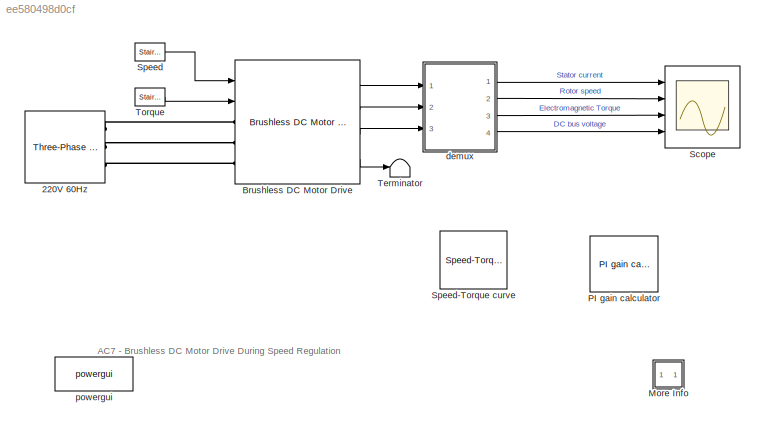
MODEL slx_ee580498d0cf
KIND model
CONFIG AbsTol = auto
CONFIG EnableMultiTasking = on
CONFIG FixedStep = auto
CONFIG MaxStep = auto
CONFIG MinStep = auto
CONFIG PreLoadFcn = Ts=2e-6;
CONFIG RelTol = 1e-3
CONFIG SampleTimeConstraint = Unconstrained
CONFIG SolverName = FixedStepDiscrete
CONFIG StartTime = 0.0
CONFIG StopTime = 2
BLOCK [Reference] 220V 60Hz  REF=spsThreePhaseSourceLib/Three-Phase Source
  Ports = [0, 0, 0, 0, 0, 0, 3]
  SourceBlock = spsThreePhaseSourceLib/Three-Phase Source
  SourceProductBaseCode = PS
  SourceType = Three-Phase Source
BLOCK [Reference] Brushless DC Motor Drive  REF=electricdrivelib/AC drives/Brushless DC Motor Drive
  Ports = [2, 4, 0, 0, 0, 3]
  SourceBlock = electricdrivelib/AC drives/Brushless DC Motor Drive
  SourceProductBaseCode = PS
  SourceType = Brushless DC Motor Drive
BLOCK [SubSystem] More Info
  OpenFcn = showdemo(bdroot(gcb))
  Ports = []
  RequestExecContextInheritance = off
BLOCK [Reference] PI gain calculator  REF=AC7DriveInternalModels/PI gain calculator
  Ports = []
  SourceBlock = AC7DriveInternalModels/PI gain calculator
  SourceProductBaseCode = PS
  SourceType = Speed regulator gain calculator
BLOCK [Scope] Scope
  Floating = off
  NumInputPorts = 4
  Ports = [4]
  ScopeSpecificationString = Simulink.scopes.TimeScopeBlockCfg('CurrentConfiguration', extmgr.ConfigurationSet(extmgr.Configuration('Core','General UI',true),extmgr.Configuration('Core','Source UI',true),extmgr.Configuration('Sources','WiredSimulink',true,'DataLoggingSaveFormat','Array','DataLoggingDecimation','1','DataLoggingDecimateData',true),extmgr.Configuration('Visuals','Time Domain',true,'SerializedDisplays',{struct('M...<+3710ch>
BLOCK [Reference] Speed  REF=spsStairGeneratorLib/Stair
Generator
  Ports = [0, 1]
  SourceBlock = spsStairGeneratorLib/Stair\nGenerator
  SourceProductBaseCode = PS
  SourceType = Stair Generator
BLOCK [Reference] Speed-Torque curve  REF=AC7DriveInternalModels/Speed-Torque curve
  Ports = []
  SourceBlock = AC7DriveInternalModels/Speed-Torque curve
  SourceProductBaseCode = PS
  SourceType = Torque vs speed curve
BLOCK [Terminator] Terminator
BLOCK [Reference] Torque  REF=spsStairGeneratorLib/Stair
Generator
  Ports = [0, 1]
  SourceBlock = spsStairGeneratorLib/Stair\nGenerator
  SourceProductBaseCode = PS
  SourceType = Stair Generator
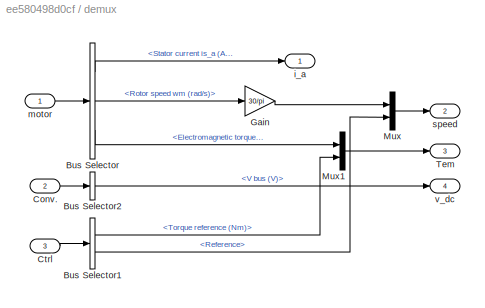
BLOCK [SubSystem] demux
  Ports = [3, 4]
  RequestExecContextInheritance = off
BLOCK [BusSelector] demux/Bus Selector
  OutputSignals = Stator current is_a (A),Rotor speed wm (rad/s),Electromagnetic torque Te (N*m)
  Ports = [1, 3]
BLOCK [BusSelector] demux/Bus Selector1
  OutputSignals = Torque reference (Nm),Reference
  Ports = [1, 2]
BLOCK [BusSelector] demux/Bus Selector2
  OutputSignals = V bus (V)
  Ports = [1, 1]
BLOCK [Inport] demux/Conv.
  Port = 2
BLOCK [Inport] demux/Ctrl
  Port = 3
BLOCK [Gain] demux/Gain
  Gain = 30/pi
  OutDataTypeStr = Inherit: Same as input
  ParamDataTypeStr = Inherit: Same as input
  SaturateOnIntegerOverflow = on
BLOCK [Mux] demux/Mux
  DisplayOption = bar
  Inputs = 2
  Ports = [2, 1]
BLOCK [Mux] demux/Mux1
  DisplayOption = bar
  Inputs = 2
  Ports = [2, 1]
BLOCK [Outport] demux/Tem
  Port = 3
  VectorParamsAs1DForOutWhenUnconnected = off
BLOCK [Outport] demux/i_a
  VectorParamsAs1DForOutWhenUnconnected = off
BLOCK [Inport] demux/motor
BLOCK [Outport] demux/speed
  NameLocation = top
  Port = 2
  VectorParamsAs1DForOutWhenUnconnected = off
BLOCK [Outport] demux/v_dc
  Port = 4
  VectorParamsAs1DForOutWhenUnconnected = off
BLOCK [Reference] powergui  REF=spspowerguiLib/powergui
  Ports = []
  SourceBlock = spspowerguiLib/powergui
  SourceProductBaseCode = PS
  SourceType = PSB option menu block
ANNOTATION (root): AC7 - Brushless DC Motor Drive During Speed Regulation
LINE Brushless DC Motor Drive:1 -> demux:1
LINE Brushless DC Motor Drive:2 -> demux:2
LINE Brushless DC Motor Drive:3 -> demux:3
LINE Brushless DC Motor Drive:4 -> Terminator:1
LINE Speed:1 -> Brushless DC Motor Drive:1
LINE Torque:1 -> Brushless DC Motor Drive:2
LINE demux/Bus Selector1:1 -> demux/Mux1:2
LINE demux/Bus Selector1:2 -> demux/Mux:2
LINE demux/Bus Selector2:1 -> demux/v_dc:1
LINE demux/Bus Selector:1 -> demux/i_a:1
LINE demux/Bus Selector:2 -> demux/Gain:1
LINE demux/Bus Selector:3 -> demux/Mux1:1
LINE demux/Conv.:1 -> demux/Bus Selector2:1
LINE demux/Ctrl:1 -> demux/Bus Selector1:1
LINE demux/Gain:1 -> demux/Mux:1
LINE demux/Mux1:1 -> demux/Tem:1
LINE demux/Mux:1 -> demux/speed:1
LINE demux/motor:1 -> demux/Bus Selector:1
LINE demux:1 -> Scope:1
LINE demux:2 -> Scope:2
LINE demux:3 -> Scope:3
LINE demux:4 -> Scope:4
PLINE 220V 60Hz:RConn1 -- Brushless DC Motor Drive:LConn1
PLINE 220V 60Hz:RConn2 -- Brushless DC Motor Drive:LConn2
PLINE 220V 60Hz:RConn3 -- Brushless DC Motor Drive:LConn3
